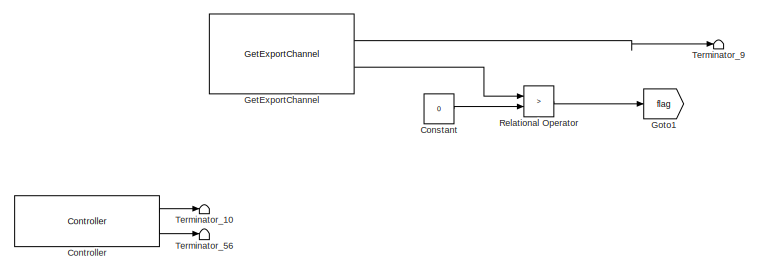
[diagram: root canvas - part 1/6, top left region]
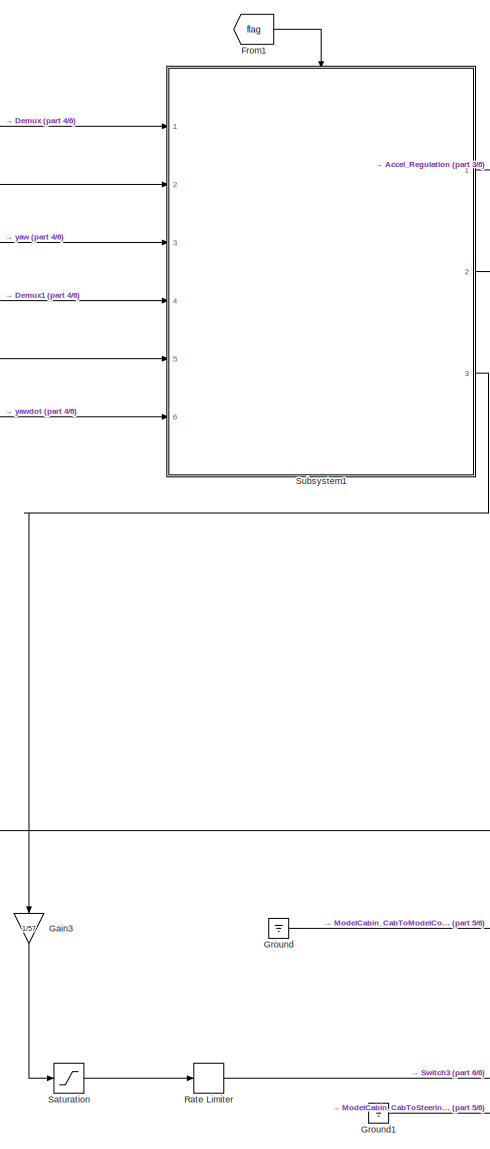
[diagram: root canvas - part 2/6, central region]
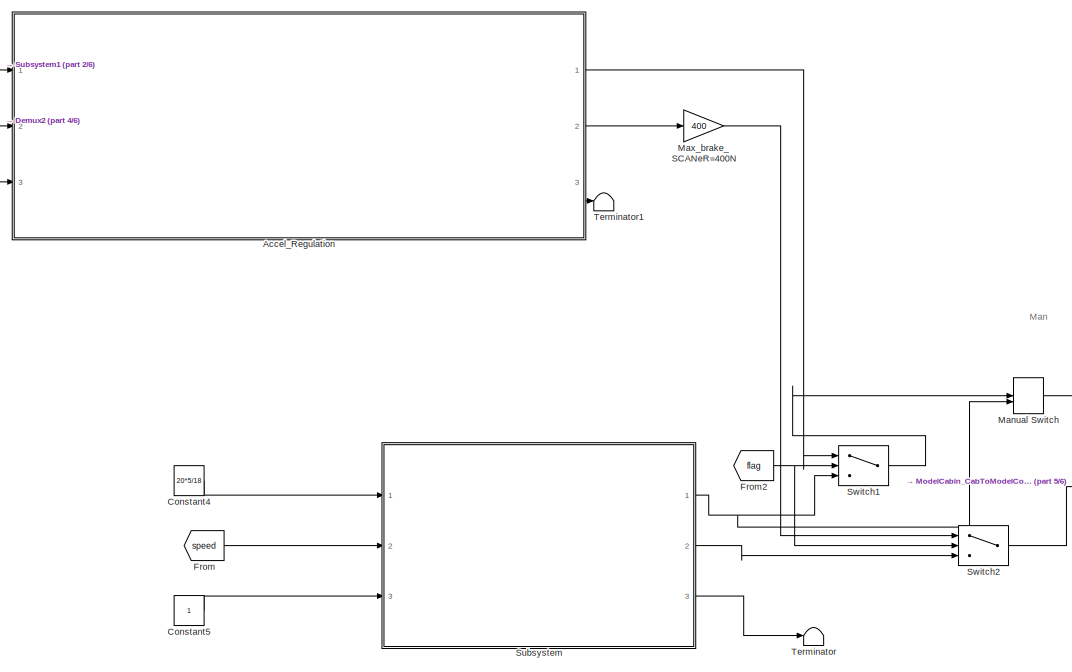
[diagram: root canvas - part 3/6, middle right region]
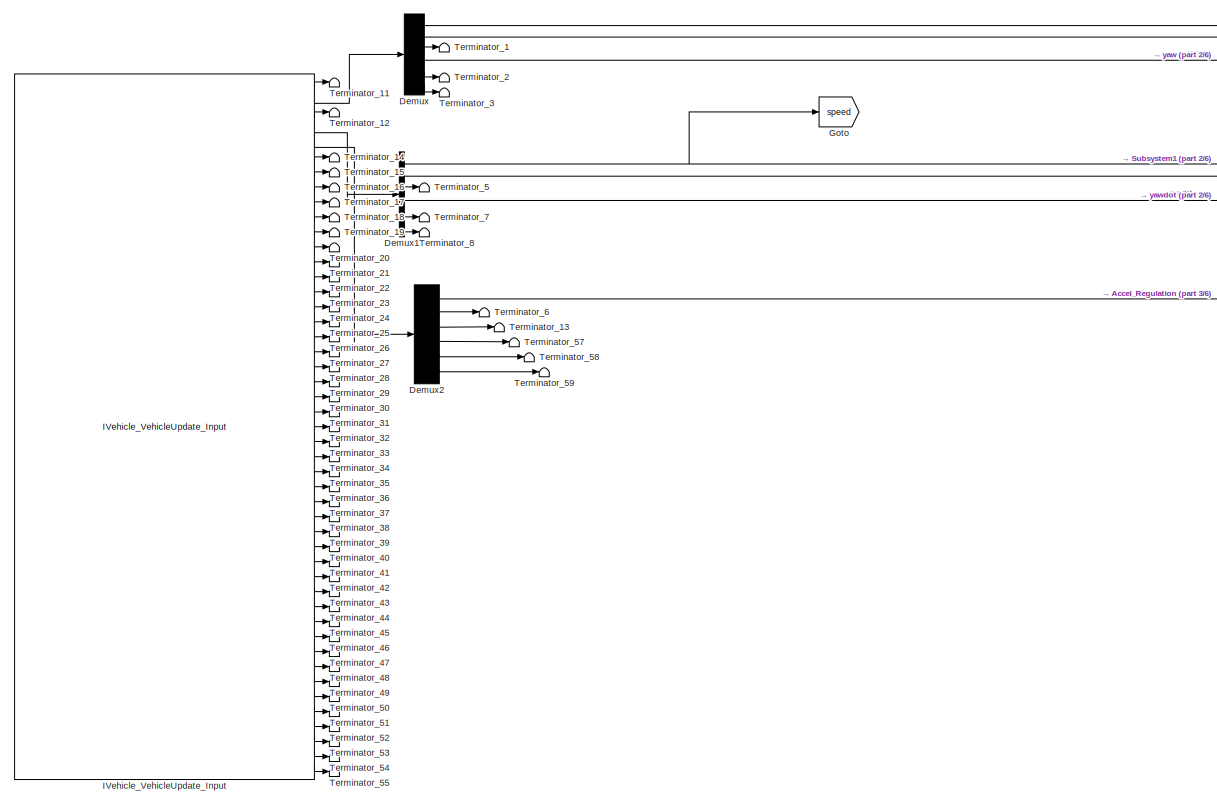
[diagram: root canvas - part 4/6, bottom left region]
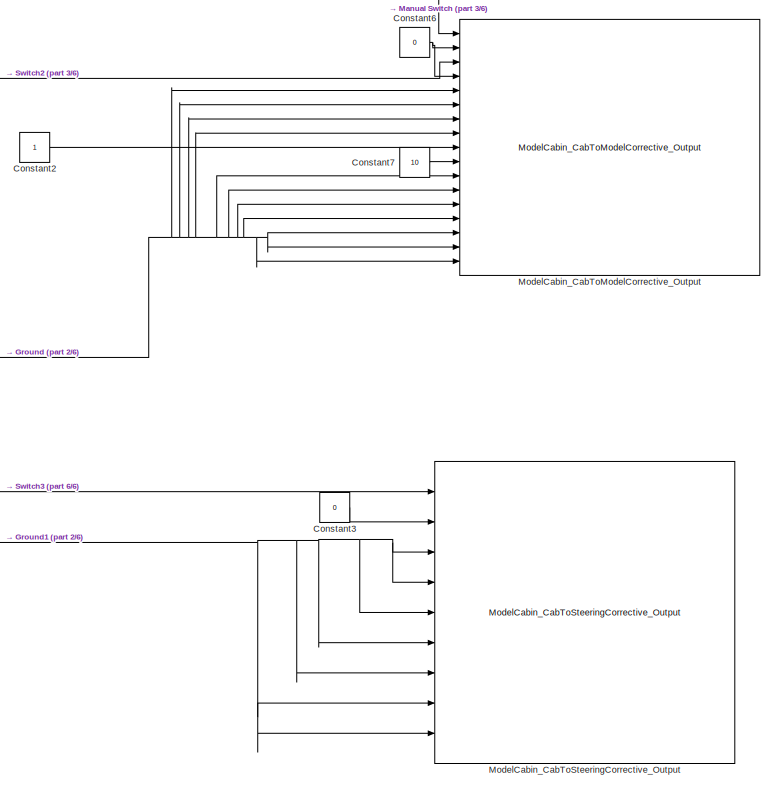
[diagram: root canvas - part 5/6, bottom right region]
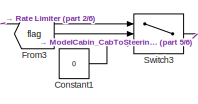
[diagram: root canvas - part 6/6, bottom right region]
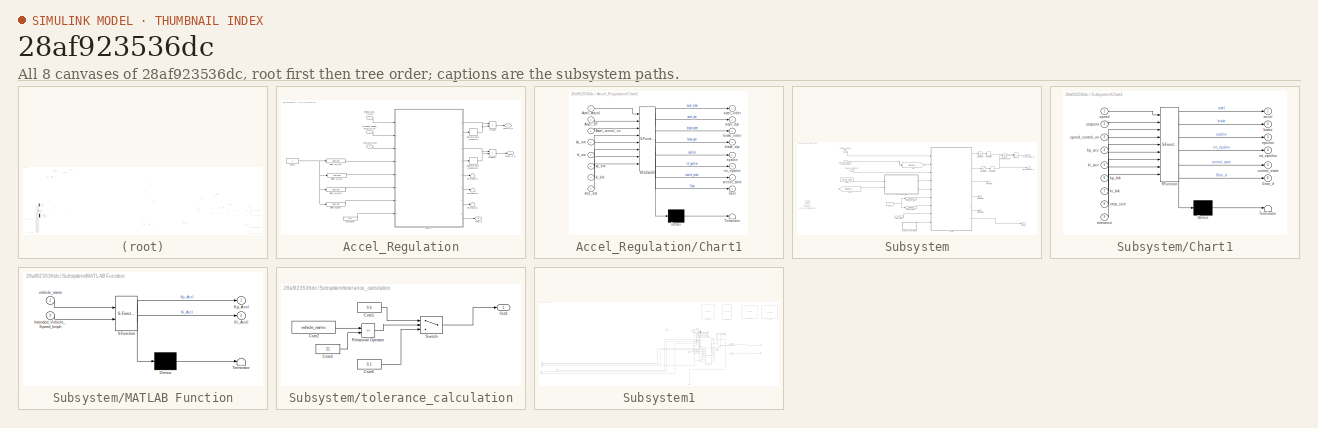
[diagram: thumbnail index - all 8 canvases of the model, root first then tree order]
MODEL slx_28af923536dc
KIND model
CONFIG AbsTol = auto
CONFIG EnableMultiTasking = off
CONFIG FixedStep = auto
CONFIG MaxStep = auto
CONFIG MinStep = auto
CONFIG RelTol = 1e-3
CONFIG SampleTimeConstraint = Unconstrained
CONFIG Solver = VariableStepAuto
CONFIG SolverName = VariableStepAuto
CONFIG StartTime = 0.0
CONFIG StopTime = inf
BLOCK [SubSystem] Accel_Regulation
  Ports = [3, 3]
  RequestExecContextInheritance = off
  Variant = off
BLOCK [Inport] Accel_Regulation/Accel_control_on
  IconDisplay = Port number
  Port = 3
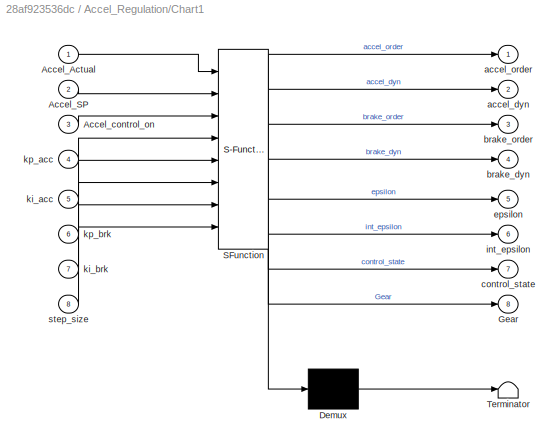
BLOCK [SubSystem] Accel_Regulation/Chart1
  ErrorFcn = Stateflow.Translate.translate
  PermitHierarchicalResolution = ExplicitOnly
  Ports = [8, 8]
  RequestExecContextInheritance = off
  SFBlockType = Chart
  SystemSampleTime = 0.01
  TreatAsAtomicUnit = on
  Variant = off
BLOCK [Demux] Accel_Regulation/Chart1/ Demux 
  Outputs = 1
  Ports = [1, 1]
BLOCK [S-Function] Accel_Regulation/Chart1/ SFunction 
  EnableBusSupport = on
  FunctionName = sf_sfun
  PortCounts = [8 9]
  Ports = [8, 9]
  SFcnIsStateOwnerBlock = off
  SFunctionDeploymentMode = off
  Tag = Stateflow S-Function roundabout_try1 2
BLOCK [Terminator] Accel_Regulation/Chart1/ Terminator 
BLOCK [Inport] Accel_Regulation/Chart1/Accel_Actual
  IconDisplay = Port number
BLOCK [Inport] Accel_Regulation/Chart1/Accel_SP
  IconDisplay = Port number
  Port = 2
BLOCK [Inport] Accel_Regulation/Chart1/Accel_control_on
  IconDisplay = Port number
  Port = 3
BLOCK [Outport] Accel_Regulation/Chart1/Gear
  IconDisplay = Port number
  Port = 8
BLOCK [Outport] Accel_Regulation/Chart1/accel_dyn
  IconDisplay = Port number
  Port = 2
BLOCK [Outport] Accel_Regulation/Chart1/accel_order
  IconDisplay = Port number
BLOCK [Outport] Accel_Regulation/Chart1/brake_dyn
  IconDisplay = Port number
  Port = 4
BLOCK [Outport] Accel_Regulation/Chart1/brake_order
  IconDisplay = Port number
  Port = 3
BLOCK [Outport] Accel_Regulation/Chart1/control_state
  IconDisplay = Port number
  Port = 7
BLOCK [Outport] Accel_Regulation/Chart1/epsilon
  IconDisplay = Port number
  Port = 5
BLOCK [Outport] Accel_Regulation/Chart1/int_epsilon
  IconDisplay = Port number
  Port = 6
BLOCK [Inport] Accel_Regulation/Chart1/ki_acc
  IconDisplay = Port number
  Port = 5
BLOCK [Inport] Accel_Regulation/Chart1/ki_brk
  IconDisplay = Port number
  Port = 7
BLOCK [Inport] Accel_Regulation/Chart1/kp_acc
  IconDisplay = Port number
  Port = 4
BLOCK [Inport] Accel_Regulation/Chart1/kp_brk
  IconDisplay = Port number
  Port = 6
BLOCK [Inport] Accel_Regulation/Chart1/step_size
  IconDisplay = Port number
  Port = 8
BLOCK [Constant] Accel_Regulation/Cste1
  SampleTime = 0.01
BLOCK [DiscreteIntegrator] Accel_Regulation/Discrete-Time Integrator
  ICPrevOutput = DiscIntNeverNeededParam
  ICPrevScaledInput = DiscIntNeverNeededParam
  LimitOutput = on
  LowerSaturationLimit = 0
  Ports = [1, 1]
  SampleTime = -1
  UpperSaturationLimit = 1
BLOCK [DiscreteIntegrator] Accel_Regulation/Discrete-Time Integrator1
  ICPrevOutput = DiscIntNeverNeededParam
  ICPrevScaledInput = DiscIntNeverNeededParam
  LimitOutput = on
  LowerSaturationLimit = 0
  Ports = [1, 1]
  SampleTime = -1
  UpperSaturationLimit = 1
BLOCK [Outport] Accel_Regulation/Gear_d
  IconDisplay = Port number
  Port = 3
BLOCK [Inport] Accel_Regulation/Intended_Vehicle_accel_[m//s2]
  IconDisplay = Port number
BLOCK [Product] Accel_Regulation/Product
  InputSameDT = off
  OutDataTypeStr = Inherit: Inherit via internal rule
  Ports = [2, 1]
  RndMeth = Floor
  SaturateOnIntegerOverflow = off
BLOCK [Product] Accel_Regulation/Product1
  InputSameDT = off
  OutDataTypeStr = Inherit: Inherit via internal rule
  Ports = [2, 1]
  RndMeth = Floor
  SaturateOnIntegerOverflow = off
BLOCK [Reference] Accel_Regulation/Slider_Ki_Acc1  REF=simulink/Math
Operations/Slider
Gain
  Ports = [1, 1]
  SourceBlock = simulink/Math\nOperations/Slider\nGain
  SourceType = Slider Gain
BLOCK [Reference] Accel_Regulation/Slider_Ki_Brk1  REF=simulink/Math
Operations/Slider
Gain
  Ports = [1, 1]
  SourceBlock = simulink/Math\nOperations/Slider\nGain
  SourceType = Slider Gain
BLOCK [Reference] Accel_Regulation/Slider_Kp_Acc1  REF=simulink/Math
Operations/Slider
Gain
  Ports = [1, 1]
  SourceBlock = simulink/Math\nOperations/Slider\nGain
  SourceType = Slider Gain
BLOCK [Reference] Accel_Regulation/Slider_Kp_Brk1  REF=simulink/Math
Operations/Slider
Gain
  Ports = [1, 1]
  SourceBlock = simulink/Math\nOperations/Slider\nGain
  SourceType = Slider Gain
BLOCK [Terminator] Accel_Regulation/Terminator4
BLOCK [Terminator] Accel_Regulation/Terminator5
BLOCK [Terminator] Accel_Regulation/Terminator6
BLOCK [Inport] Accel_Regulation/Vehicle_accel_[m//s2]
  IconDisplay = Port number
  Port = 2
BLOCK [Outport] Accel_Regulation/accel [0_1]
  IconDisplay = Port number
BLOCK [Outport] Accel_Regulation/brake [0_1]
  IconDisplay = Port number
  Port = 2
BLOCK [Constant] Accel_Regulation/step_size1
  SampleTime = 0.01
  Value = 0.01
BLOCK [Constant] Constant
  Value = 0
BLOCK [Constant] Constant1
  Value = 0
BLOCK [Constant] Constant2
BLOCK [Constant] Constant3
  Value = 0
BLOCK [Constant] Constant4
  Value = 20*5/18
BLOCK [Constant] Constant5
BLOCK [Constant] Constant6
  Value = 0
BLOCK [Constant] Constant7
  Value = 10
BLOCK [Reference] Controller  REF=SCANeR_API/Controller
  Ports = [0, 2]
  Priority = 1
  SourceBlock = SCANeR_API/Controller
BLOCK [Demux] Demux
  DisplayOption = bar
  Outputs = 6
  Ports = [1, 6]
BLOCK [Demux] Demux1
  DisplayOption = bar
  Outputs = 6
  Ports = [1, 6]
BLOCK [Demux] Demux2
  DisplayOption = bar
  Outputs = 6
  Ports = [1, 6]
BLOCK [From] From
  GotoTag = speed
BLOCK [From] From1
  GotoTag = flag
BLOCK [From] From2
  Commented = on
  GotoTag = flag
BLOCK [From] From3
  GotoTag = flag
BLOCK [Gain] Gain3
  Gain = 1/57
  OutDataTypeStr = Inherit: Inherit via internal rule
  ParamDataTypeStr = Inherit: Inherit via internal rule
  SaturateOnIntegerOverflow = off
BLOCK [Reference] GetExportChannel  REF=SCANeR_API/GetExportChannel
  Ports = [0, 2]
  Priority = 0
  SourceBlock = SCANeR_API/GetExportChannel
BLOCK [Goto] Goto
  GotoTag = speed
BLOCK [Goto] Goto1
  GotoTag = flag
BLOCK [Ground] Ground
BLOCK [Ground] Ground1
BLOCK [Reference] IVehicle_VehicleUpdate_Input  REF=SCANeR_API/Network inputs/IVehicle/IVehicle_VehicleUpdate_Input
  Ports = [0, 47]
  Priority = 2
  SourceBlock = SCANeR_API/Network inputs/IVehicle/IVehicle_VehicleUpdate_Input
  SourceType = IVehicle_VehicleUpdate_Input
BLOCK [ManualSwitch] Manual Switch
  CurrentSetting = 0
BLOCK [Gain] Max_brake_SCANeR=400N
  Gain = 400
  OutDataTypeStr = Inherit: Inherit via internal rule
  ParamDataTypeStr = Inherit: Inherit via internal rule
  SaturateOnIntegerOverflow = off
BLOCK [Reference] ModelCabin_CabToModelCorrective_Output  REF=SCANeR_API/SHM outputs/ModelCabin/ModelCabin_CabToModelCorrective_Output
  Ports = [17]
  Priority = 2
  SourceBlock = SCANeR_API/SHM outputs/ModelCabin/ModelCabin_CabToModelCorrective_Output
  SourceType = ModelCabin_CabToModelCorrective_Output
BLOCK [Reference] ModelCabin_CabToSteeringCorrective_Output  REF=SCANeR_API/SHM outputs/ModelCabin/ModelCabin_CabToSteeringCorrective_Output
  Ports = [9]
  Priority = 2
  SourceBlock = SCANeR_API/SHM outputs/ModelCabin/ModelCabin_CabToSteeringCorrective_Output
  SourceType = ModelCabin_CabToSteeringCorrective_Output
BLOCK [RateLimiter] Rate Limiter
  FallingSlewLimit = -10
  RisingSlewLimit = 10
  SampleTimeMode = inherited
BLOCK [RelationalOperator] Relational Operator
  InputSameDT = off
  Operator = >
  OutDataTypeStr = boolean
  Ports = [2, 1]
  RndMeth = Simplest
BLOCK [Saturate] Saturation
  InputPortMap = u0
  LowerLimit = -10
  Ports = [1, 1]
  UpperLimit = 10
BLOCK [SubSystem] Subsystem
  Ports = [3, 3]
  RequestExecContextInheritance = off
  Variant = off
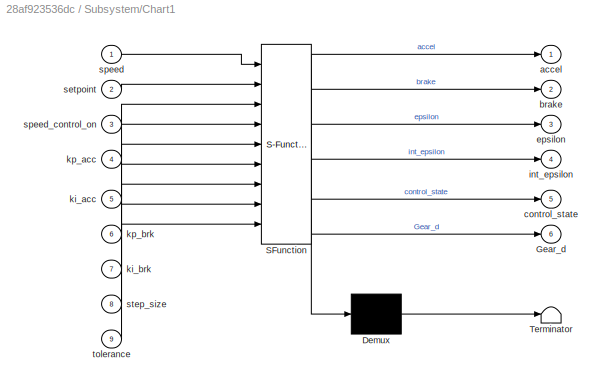
BLOCK [SubSystem] Subsystem/Chart1
  ErrorFcn = Stateflow.Translate.translate
  PermitHierarchicalResolution = ExplicitOnly
  Ports = [9, 6]
  RequestExecContextInheritance = off
  SFBlockType = Chart
  SystemSampleTime = 0.01
  TreatAsAtomicUnit = on
  Variant = off
BLOCK [Demux] Subsystem/Chart1/ Demux 
  Outputs = 1
  Ports = [1, 1]
BLOCK [S-Function] Subsystem/Chart1/ SFunction 
  EnableBusSupport = on
  FunctionName = sf_sfun
  PortCounts = [9 7]
  Ports = [9, 7]
  SFcnIsStateOwnerBlock = off
  SFunctionDeploymentMode = off
  Tag = Stateflow S-Function roundabout_try1 5
BLOCK [Terminator] Subsystem/Chart1/ Terminator 
BLOCK [Outport] Subsystem/Chart1/Gear_d
  IconDisplay = Port number
  Port = 6
BLOCK [Outport] Subsystem/Chart1/accel
  IconDisplay = Port number
BLOCK [Outport] Subsystem/Chart1/brake
  IconDisplay = Port number
  Port = 2
BLOCK [Outport] Subsystem/Chart1/control_state
  IconDisplay = Port number
  Port = 5
BLOCK [Outport] Subsystem/Chart1/epsilon
  IconDisplay = Port number
  Port = 3
BLOCK [Outport] Subsystem/Chart1/int_epsilon
  IconDisplay = Port number
  Port = 4
BLOCK [Inport] Subsystem/Chart1/ki_acc
  IconDisplay = Port number
  Port = 5
BLOCK [Inport] Subsystem/Chart1/ki_brk
  IconDisplay = Port number
  Port = 7
BLOCK [Inport] Subsystem/Chart1/kp_acc
  IconDisplay = Port number
  Port = 4
BLOCK [Inport] Subsystem/Chart1/kp_brk
  IconDisplay = Port number
  Port = 6
BLOCK [Inport] Subsystem/Chart1/setpoint
  IconDisplay = Port number
  Port = 2
BLOCK [Inport] Subsystem/Chart1/speed
  IconDisplay = Port number
BLOCK [Inport] Subsystem/Chart1/speed_control_on
  IconDisplay = Port number
  Port = 3
BLOCK [Inport] Subsystem/Chart1/step_size
  IconDisplay = Port number
  Port = 8
BLOCK [Inport] Subsystem/Chart1/tolerance
  IconDisplay = Port number
  Port = 9
BLOCK [Reference] Subsystem/Compare To Zero  REF=simulink/Logic and Bit
Operations/Compare
To Zero
  Ports = [1, 1]
  SourceBlock = simulink/Logic and Bit\nOperations/Compare\nTo Zero
  SourceType = Compare To Zero
BLOCK [Constant] Subsystem/Cste1
  SampleTime = 0.01
BLOCK [Constant] Subsystem/Cste3
  SampleTime = 0.01
  Value = vehicle_name
BLOCK [Outport] Subsystem/Driver_Brake [0_1]
  IconDisplay = Port number
  Port = 2
BLOCK [From] Subsystem/From
  GotoTag = Intended_Vehicle_Speed_kmph
BLOCK [Outport] Subsystem/Gear_d
  IconDisplay = Port number
  Port = 3
BLOCK [Goto] Subsystem/Goto
  GotoTag = Intended_Vehicle_Speed_kmph
BLOCK [Inport] Subsystem/Intended_Vehicle_Speed_[m//s]
  IconDisplay = Port number
BLOCK [SubSystem] Subsystem/MATLAB Function
  ErrorFcn = Stateflow.Translate.translate
  PermitHierarchicalResolution = ExplicitOnly
  Ports = [2, 2]
  RequestExecContextInheritance = off
  SFBlockType = MATLAB Function
  TreatAsAtomicUnit = on
  Variant = off
BLOCK [Demux] Subsystem/MATLAB Function/ Demux 
  Outputs = 1
  Ports = [1, 1]
BLOCK [S-Function] Subsystem/MATLAB Function/ SFunction 
  EnableBusSupport = on
  FunctionName = sf_sfun
  PortCounts = [2 3]
  Ports = [2, 3]
  SFcnIsStateOwnerBlock = off
  SFunctionDeploymentMode = off
  Tag = Stateflow S-Function roundabout_try1 6
BLOCK [Terminator] Subsystem/MATLAB Function/ Terminator 
BLOCK [Inport] Subsystem/MATLAB Function/Intended_Vehicle_Speed_kmph
  IconDisplay = Port number
  Port = 2
BLOCK [Outport] Subsystem/MATLAB Function/Ki_Accl
  IconDisplay = Port number
  Port = 2
BLOCK [Outport] Subsystem/MATLAB Function/Kp_Accl
  IconDisplay = Port number
BLOCK [Inport] Subsystem/MATLAB Function/vehicle_name
  IconDisplay = Port number
BLOCK [Product] Subsystem/Product
  InputSameDT = off
  OutDataTypeStr = Inherit: Inherit via internal rule
  Ports = [2, 1]
  RndMeth = Floor
  SaturateOnIntegerOverflow = off
BLOCK [RateLimiter] Subsystem/Rate Limiter
  RisingSlewLimit = 0.5
  SampleTimeMode = inherited
BLOCK [RateLimiter] Subsystem/Rate Limiter1
  RisingSlewLimit = 0.2
  SampleTimeMode = inherited
BLOCK [Saturate] Subsystem/Saturation2
  InputPortMap = u0
  LowerLimit = 0
  Ports = [1, 1]
  SampleTime = 0.01
  UpperLimit = 1
BLOCK [Saturate] Subsystem/Saturation4
  InputPortMap = u0
  LowerLimit = 0
  Ports = [1, 1]
  SampleTime = 0.01
  UpperLimit = 1
BLOCK [Reference] Subsystem/Slider_Ki_Brk1  REF=simulink/Math
Operations/Slider
Gain
  Ports = [1, 1]
  SourceBlock = simulink/Math\nOperations/Slider\nGain
  SourceType = Slider Gain
BLOCK [Reference] Subsystem/Slider_Kp_Brk1  REF=simulink/Math
Operations/Slider
Gain
  Ports = [1, 1]
  SourceBlock = simulink/Math\nOperations/Slider\nGain
  SourceType = Slider Gain
BLOCK [Inport] Subsystem/Speed_control_on
  IconDisplay = Port number
  Port = 3
BLOCK [Terminator] Subsystem/Terminator4
BLOCK [Terminator] Subsystem/Terminator5
BLOCK [Terminator] Subsystem/Terminator6
BLOCK [Inport] Subsystem/Vehicle_Speed_[m//s]
  IconDisplay = Port number
  Port = 2
BLOCK [Outport] Subsystem/accel_regul [0_1]
  IconDisplay = Port number
BLOCK [Constant] Subsystem/step_size1
  SampleTime = 0.01
  Value = 0.01
BLOCK [SubSystem] Subsystem/tolerance_calculation
  Ports = [0, 1]
  RequestExecContextInheritance = off
  Variant = off
BLOCK [Constant] Subsystem/tolerance_calculation/Cste2
  SampleTime = 0.01
  Value = vehicle_name
BLOCK [Constant] Subsystem/tolerance_calculation/Cste4
  SampleTime = 0.01
  Value = 21
BLOCK [Constant] Subsystem/tolerance_calculation/Cste5
  SampleTime = 0.01
  Value = 0.4
BLOCK [Constant] Subsystem/tolerance_calculation/Cste6
  SampleTime = 0.01
  Value = 0.1
BLOCK [Outport] Subsystem/tolerance_calculation/Out1
  IconDisplay = Port number
BLOCK [RelationalOperator] Subsystem/tolerance_calculation/Relational Operator
  InputSameDT = off
  Operator = ==
  OutDataTypeStr = boolean
  Ports = [2, 1]
  RndMeth = Simplest
BLOCK [Switch] Subsystem/tolerance_calculation/Switch
  Criteria = u2 > Threshold
  InputSameDT = off
  SaturateOnIntegerOverflow = off
  Threshold = 0.5
BLOCK [SubSystem] Subsystem1
  Ports = [6, 3, 1]
  RequestExecContextInheritance = off
  Variant = off
BLOCK [Clock] Subsystem1/Clock
BLOCK [Constant] Subsystem1/Constant1
BLOCK [EnablePort] Subsystem1/Enable
  Ports = []
BLOCK [Inport] Subsystem1/In15
  IconDisplay = Port number
BLOCK [Inport] Subsystem1/In16
  IconDisplay = Port number
  Port = 2
BLOCK [Inport] Subsystem1/In17
  IconDisplay = Port number
  Port = 3
BLOCK [Inport] Subsystem1/In18
  IconDisplay = Port number
  Port = 4
BLOCK [Inport] Subsystem1/In19
  IconDisplay = Port number
  Port = 5
BLOCK [Inport] Subsystem1/In20
  IconDisplay = Port number
  Port = 6
BLOCK [MATLABSystem] Subsystem1/MATLAB System
  Commented = on
  MaskDisplay = disp('casadi_block_MPCtry_1');\nport_label('input',1,'xd_in');\nport_label('input',2,'yd_in');\nport_label('input',3,'yawd_in');\nport_label('input',4,'yaw_in');\nport_label('input',5,'x_in');\nport_label('input',6,'y_in');\nport_label('input',7,'t');\nport_label('output',1,'delta_out');\nport_label('output',2,'acc_out');\nport_label('output',3,'break_out');\nport_label('output',4,'vref');\nport_label('output...<+11ch>
  MaskType = casadi_block_MPCtry_1
  Ports = [7, 5]
  SimulateUsing = Interpreted execution
  System = casadi_block_MPCtry_1
BLOCK [MATLABSystem] Subsystem1/MATLAB System1
  MaskDisplay = disp('casadi_block_MPCtry_3');\nport_label('input',1,'xd_in');\nport_label('input',2,'yd_in');\nport_label('input',3,'yawd_in');\nport_label('input',4,'yaw_in');\nport_label('input',5,'x_in');\nport_label('input',6,'y_in');\nport_label('input',7,'t');\nport_label('output',1,'delta_out');\nport_label('output',2,'acc_out');\nport_label('output',3,'break_out');\nport_label('output',4,'vref');\nport_label('output...<+11ch>
  MaskType = casadi_block_MPCtry_3
  Ports = [7, 5]
  SimulateUsing = Interpreted execution
  System = casadi_block_MPCtry_3
BLOCK [MATLABSystem] Subsystem1/MATLAB System2
  Commented = on
  MaskDisplay = disp('casadi_block_MPC_LSS');\nport_label('input',1,'xd_in');\nport_label('input',2,'yd_in');\nport_label('input',3,'yawd_in');\nport_label('input',4,'yaw_in');\nport_label('input',5,'x_in');\nport_label('input',6,'y_in');\nport_label('input',7,'t');\nport_label('output',1,'delta_out');\nport_label('output',2,'acc_out');\nport_label('output',3,'break_out');\nport_label('output',4,'vref');\nport_label('output'...<+10ch>
  MaskType = casadi_block_MPC_LSS
  Ports = [7, 5]
  SimulateUsing = Interpreted execution
  System = casadi_block_MPC_LSS
BLOCK [MATLABSystem] Subsystem1/MATLAB System3
  Commented = on
  MaskDisplay = disp('casadi_block_MPC_left_turn');\nport_label('input',1,'xd_in');\nport_label('input',2,'yd_in');\nport_label('input',3,'yawd_in');\nport_label('input',4,'yaw_in');\nport_label('input',5,'x_in');\nport_label('input',6,'y_in');\nport_label('input',7,'t');\nport_label('output',1,'delta_out');\nport_label('output',2,'acc_out');\nport_label('output',3,'break_out');\nport_label('output',4,'vref');\nport_label('o...<+16ch>
  MaskType = casadi_block_MPC_left_turn
  Ports = [7, 5]
  SimulateUsing = Interpreted execution
  System = casadi_block_MPC_left_turn
BLOCK [MATLABSystem] Subsystem1/MATLAB System4
  Commented = on
  MaskDisplay = disp('casadi_block_MPC_left_turn_2');\nport_label('input',1,'xd_in');\nport_label('input',2,'yd_in');\nport_label('input',3,'yawd_in');\nport_label('input',4,'yaw_in');\nport_label('input',5,'x_in');\nport_label('input',6,'y_in');\nport_label('input',7,'t');\nport_label('output',1,'delta_out');\nport_label('output',2,'acc_out');\nport_label('output',3,'break_out');\nport_label('output',4,'vref');\nport_label(...<+18ch>
  MaskType = casadi_block_MPC_left_turn_2
  Ports = [7, 5]
  SimulateUsing = Interpreted execution
  System = casadi_block_MPC_left_turn_2
BLOCK [Mux] Subsystem1/Mux1
  DisplayOption = bar
  Inputs = 2
  Ports = [2, 1]
BLOCK [Outport] Subsystem1/Out11
  IconDisplay = Port number
BLOCK [Outport] Subsystem1/Out12
  IconDisplay = Port number
  Port = 2
BLOCK [Outport] Subsystem1/Out13
  IconDisplay = Port number
  Port = 3
BLOCK [RateTransition] Subsystem1/Rate Transition2
  OutPortSampleTime = 0.02
BLOCK [Scope] Subsystem1/Scope
  NumInputPorts = 6
  Ports = [6]
  ScopeSpecificationString = C++SS(StrPVP('SaveName','ScopeData1'),StrPVP('LimitDataPoints','on'),StrPVP('DataFormat','Array'),StrPVP('Decimation','1'),StrPVP('BlockParamSampleInput','off'))
BLOCK [Scope] Subsystem1/Scope1
  NumInputPorts = 3
  Ports = [3]
  ScopeSpecificationString = Simulink.scopes.TimeScopeBlockCfg('CurrentConfiguration', extmgr.ConfigurationSet(extmgr.Configuration('Core','General UI',true),extmgr.Configuration('Core','Source UI',true),extmgr.Configuration('Sources','WiredSimulink',true,'DataLoggingVariableName','ScopeData2','DataLoggingLimitDataPoints',true,'DataLoggingSaveFormat','Array','DataLoggingDecimation','1','DataLoggingDecimateData',true),extmgr.C...<+3258ch>
BLOCK [Scope] Subsystem1/Scope2
  NumInputPorts = 1
  Ports = [1]
  ScopeSpecificationString = Simulink.scopes.TimeScopeBlockCfg('CurrentConfiguration', extmgr.ConfigurationSet(extmgr.Configuration('Core','General UI',true),extmgr.Configuration('Core','Source UI',true),extmgr.Configuration('Sources','WiredSimulink',true,'DataLoggingVariableName','ScopeData3','DataLoggingLimitDataPoints',true,'DataLoggingSaveFormat','Array','DataLoggingDecimation','1','DataLoggingDecimateData',true),extmgr.C...<+1547ch>
BLOCK [Scope] Subsystem1/Scope3
  NumInputPorts = 1
  Ports = [1]
  ScopeSpecificationString = C++SS(StrPVP('SaveName','ScopeData'),StrPVP('LimitDataPoints','on'),StrPVP('DataFormat','Array'),StrPVP('Decimation','1'),StrPVP('BlockParamSampleInput','off'),StrPVP('SaveName','ScopeData'),StrPVP('SaveName','ScopeData4'))
BLOCK [Sum] Subsystem1/Sum
  IconShape = round
  InputSameDT = off
  Inputs = |+-
  OutDataTypeStr = Inherit: Inherit via internal rule
  Ports = [2, 1]
  SaturateOnIntegerOverflow = off
BLOCK [Switch] Subsystem1/Switch
  InputSameDT = off
  SaturateOnIntegerOverflow = off
BLOCK [Switch] Switch1
  Criteria = u2 > Threshold
  InputSameDT = off
  SaturateOnIntegerOverflow = off
  Threshold = 5
BLOCK [Switch] Switch2
  Criteria = u2 > Threshold
  InputSameDT = off
  SaturateOnIntegerOverflow = off
BLOCK [Switch] Switch3
  Criteria = u2 > Threshold
  InputSameDT = off
  SaturateOnIntegerOverflow = off
BLOCK [Terminator] Terminator
BLOCK [Terminator] Terminator1
BLOCK [Terminator] Terminator_1
BLOCK [Terminator] Terminator_10
BLOCK [Terminator] Terminator_11
BLOCK [Terminator] Terminator_12
BLOCK [Terminator] Terminator_13
BLOCK [Terminator] Terminator_14
BLOCK [Terminator] Terminator_15
BLOCK [Terminator] Terminator_16
BLOCK [Terminator] Terminator_17
BLOCK [Terminator] Terminator_18
BLOCK [Terminator] Terminator_19
BLOCK [Terminator] Terminator_2
BLOCK [Terminator] Terminator_20
BLOCK [Terminator] Terminator_21
BLOCK [Terminator] Terminator_22
BLOCK [Terminator] Terminator_23
BLOCK [Terminator] Terminator_24
BLOCK [Terminator] Terminator_25
BLOCK [Terminator] Terminator_26
BLOCK [Terminator] Terminator_27
BLOCK [Terminator] Terminator_28
BLOCK [Terminator] Terminator_29
BLOCK [Terminator] Terminator_3
BLOCK [Terminator] Terminator_30
BLOCK [Terminator] Terminator_31
BLOCK [Terminator] Terminator_32
BLOCK [Terminator] Terminator_33
BLOCK [Terminator] Terminator_34
BLOCK [Terminator] Terminator_35
BLOCK [Terminator] Terminator_36
BLOCK [Terminator] Terminator_37
BLOCK [Terminator] Terminator_38
BLOCK [Terminator] Terminator_39
BLOCK [Terminator] Terminator_40
BLOCK [Terminator] Terminator_41
BLOCK [Terminator] Terminator_42
BLOCK [Terminator] Terminator_43
BLOCK [Terminator] Terminator_44
BLOCK [Terminator] Terminator_45
BLOCK [Terminator] Terminator_46
BLOCK [Terminator] Terminator_47
BLOCK [Terminator] Terminator_48
BLOCK [Terminator] Terminator_49
BLOCK [Terminator] Terminator_5
BLOCK [Terminator] Terminator_50
BLOCK [Terminator] Terminator_51
BLOCK [Terminator] Terminator_52
BLOCK [Terminator] Terminator_53
BLOCK [Terminator] Terminator_54
BLOCK [Terminator] Terminator_55
BLOCK [Terminator] Terminator_56
BLOCK [Terminator] Terminator_57
BLOCK [Terminator] Terminator_58
BLOCK [Terminator] Terminator_59
BLOCK [Terminator] Terminator_6
BLOCK [Terminator] Terminator_7
BLOCK [Terminator] Terminator_8
BLOCK [Terminator] Terminator_9
ANNOTATION (root): Man
ANNOTATION Subsystem: 0 = HHN 1 = BCB 2 = FFK 3 = KFKL1 4 = KFKL2 5 = KFKL1_VODM_CD04 6= KFKL1_VODM_CD05 7 = KFKL1_VODM_CD06 8 = FFKL1_VODM_CD06 9 = FFKL1_MMAC_CD06 10 = FFKL2_MMAC_CD06 11 = KFKL2_MMAC_CD06 12 = XDD_35T_TRS_L2H2
LINE Accel_Regulation/Accel_control_on:1 -> Accel_Regulation/Chart1:3
LINE Accel_Regulation/Chart1:1 -> Accel_Regulation/Product:1
LINE Accel_Regulation/Chart1:2 -> Accel_Regulation/Discrete-Time Integrator:1
LINE Accel_Regulation/Chart1:3 -> Accel_Regulation/Product1:1
LINE Accel_Regulation/Chart1:4 -> Accel_Regulation/Discrete-Time Integrator1:1
LINE Accel_Regulation/Chart1:5 -> Accel_Regulation/Terminator4:1
LINE Accel_Regulation/Chart1:6 -> Accel_Regulation/Terminator5:1
LINE Accel_Regulation/Chart1:7 -> Accel_Regulation/Terminator6:1
LINE Accel_Regulation/Chart1:8 -> Accel_Regulation/Gear_d:1
NET Accel_Regulation/Cste1:1 -> Accel_Regulation/Slider_Ki_Acc1:1, Accel_Regulation/Slider_Ki_Brk1:1, Accel_Regulation/Slider_Kp_Acc1:1, Accel_Regulation/Slider_Kp_Brk1:1
LINE Accel_Regulation/Discrete-Time Integrator1:1 -> Accel_Regulation/Product1:2
LINE Accel_Regulation/Discrete-Time Integrator:1 -> Accel_Regulation/Product:2
LINE Accel_Regulation/Intended_Vehicle_accel_[m//s2]:1 -> Accel_Regulation/Chart1:2
LINE Accel_Regulation/Product1:1 -> Accel_Regulation/brake [0_1]:1
LINE Accel_Regulation/Product:1 -> Accel_Regulation/accel [0_1]:1
LINE Accel_Regulation/Slider_Ki_Acc1:1 -> Accel_Regulation/Chart1:5
LINE Accel_Regulation/Slider_Ki_Brk1:1 -> Accel_Regulation/Chart1:7
LINE Accel_Regulation/Slider_Kp_Acc1:1 -> Accel_Regulation/Chart1:4
LINE Accel_Regulation/Slider_Kp_Brk1:1 -> Accel_Regulation/Chart1:6
LINE Accel_Regulation/Vehicle_accel_[m//s2]:1 -> Accel_Regulation/Chart1:1
LINE Accel_Regulation/step_size1:1 -> Accel_Regulation/Chart1:8
LINE Accel_Regulation:1 -> Switch1:1
LINE Accel_Regulation:2 -> Max_brake_SCANeR=400N:1
LINE Accel_Regulation:3 -> Terminator1:1
LINE Constant1:1 -> Switch3:3
LINE Constant2:1 -> ModelCabin_CabToModelCorrective_Output:9
LINE Constant3:1 -> ModelCabin_CabToSteeringCorrective_Output:2
LINE Constant4:1 -> Subsystem:1
LINE Constant5:1 -> Subsystem:3
NET Constant6:1 -> ModelCabin_CabToModelCorrective_Output:2, ModelCabin_CabToModelCorrective_Output:4
LINE Constant7:1 -> ModelCabin_CabToModelCorrective_Output:10
LINE Constant:1 -> Relational Operator:2
LINE Controller:1 -> Terminator_10:1
LINE Controller:2 -> Terminator_56:1
NET Demux1:1 -> Goto:1, Subsystem1:4
LINE Demux1:2 -> Subsystem1:5
LINE Demux1:3 -> Terminator_5:1
LINE Demux1:4 -> Subsystem1:6
LINE Demux1:5 -> Terminator_7:1
LINE Demux1:6 -> Terminator_8:1
LINE Demux2:1 -> Accel_Regulation:2
LINE Demux2:2 -> Terminator_6:1
LINE Demux2:3 -> Terminator_13:1
LINE Demux2:4 -> Terminator_57:1
LINE Demux2:5 -> Terminator_58:1
LINE Demux2:6 -> Terminator_59:1
LINE Demux:1 -> Subsystem1:1
LINE Demux:2 -> Subsystem1:2
LINE Demux:3 -> Terminator_1:1
LINE Demux:4 -> Subsystem1:3
LINE Demux:5 -> Terminator_2:1
LINE Demux:6 -> Terminator_3:1
LINE From1:1 -> Subsystem1:enable
NET From2:1 -> Switch1:2, Switch2:2
LINE From3:1 -> Switch3:2
LINE From:1 -> Subsystem:2
LINE Gain3:1 -> Saturation:1
LINE GetExportChannel:1 -> Terminator_9:1
LINE GetExportChannel:2 -> Relational Operator:1
NET Ground1:1 -> ModelCabin_CabToSteeringCorrective_Output:3, ModelCabin_CabToSteeringCorrective_Output:4, ModelCabin_CabToSteeringCorrective_Output:5, ModelCabin_CabToSteeringCorrective_Output:6, ModelCabin_CabToSteeringCorrective_Output:7, ModelCabin_CabToSteeringCorrective_Output:8, ModelCabin_CabToSteeringCorrective_Output:9
NET Ground:1 -> ModelCabin_CabToModelCorrective_Output:11, ModelCabin_CabToModelCorrective_Output:12, ModelCabin_CabToModelCorrective_Output:13, ModelCabin_CabToModelCorrective_Output:14, ModelCabin_CabToModelCorrective_Output:15, ModelCabin_CabToModelCorrective_Output:16, ModelCabin_CabToModelCorrective_Output:17, ModelCabin_CabToModelCorrective_Output:5, ModelCabin_CabToModelCorrective_Output:6, ModelCabin_CabToModelCorrective_Output:7, ModelCabin_CabToModelCorrective_Output:8
LINE IVehicle_VehicleUpdate_Input:1 -> Terminator_11:1
LINE IVehicle_VehicleUpdate_Input:10 -> Terminator_18:1
LINE IVehicle_VehicleUpdate_Input:11 -> Terminator_19:1
LINE IVehicle_VehicleUpdate_Input:12 -> Terminator_20:1
LINE IVehicle_VehicleUpdate_Input:13 -> Terminator_21:1
LINE IVehicle_VehicleUpdate_Input:14 -> Terminator_22:1
LINE IVehicle_VehicleUpdate_Input:15 -> Terminator_23:1
LINE IVehicle_VehicleUpdate_Input:16 -> Terminator_24:1
LINE IVehicle_VehicleUpdate_Input:17 -> Terminator_25:1
LINE IVehicle_VehicleUpdate_Input:18 -> Terminator_26:1
LINE IVehicle_VehicleUpdate_Input:19 -> Terminator_27:1
LINE IVehicle_VehicleUpdate_Input:2 -> Demux:1
LINE IVehicle_VehicleUpdate_Input:20 -> Terminator_28:1
LINE IVehicle_VehicleUpdate_Input:21 -> Terminator_29:1
LINE IVehicle_VehicleUpdate_Input:22 -> Terminator_30:1
LINE IVehicle_VehicleUpdate_Input:23 -> Terminator_31:1
LINE IVehicle_VehicleUpdate_Input:24 -> Terminator_32:1
LINE IVehicle_VehicleUpdate_Input:25 -> Terminator_33:1
LINE IVehicle_VehicleUpdate_Input:26 -> Terminator_34:1
LINE IVehicle_VehicleUpdate_Input:27 -> Terminator_35:1
LINE IVehicle_VehicleUpdate_Input:28 -> Terminator_36:1
LINE IVehicle_VehicleUpdate_Input:29 -> Terminator_37:1
LINE IVehicle_VehicleUpdate_Input:3 -> Terminator_12:1
LINE IVehicle_VehicleUpdate_Input:30 -> Terminator_38:1
LINE IVehicle_VehicleUpdate_Input:31 -> Terminator_39:1
LINE IVehicle_VehicleUpdate_Input:32 -> Terminator_40:1
LINE IVehicle_VehicleUpdate_Input:33 -> Terminator_41:1
LINE IVehicle_VehicleUpdate_Input:34 -> Terminator_42:1
LINE IVehicle_VehicleUpdate_Input:35 -> Terminator_43:1
LINE IVehicle_VehicleUpdate_Input:36 -> Terminator_44:1
LINE IVehicle_VehicleUpdate_Input:37 -> Terminator_45:1
LINE IVehicle_VehicleUpdate_Input:38 -> Terminator_46:1
LINE IVehicle_VehicleUpdate_Input:39 -> Terminator_47:1
LINE IVehicle_VehicleUpdate_Input:4 -> Demux1:1
LINE IVehicle_VehicleUpdate_Input:40 -> Terminator_48:1
LINE IVehicle_VehicleUpdate_Input:41 -> Terminator_49:1
LINE IVehicle_VehicleUpdate_Input:42 -> Terminator_50:1
LINE IVehicle_VehicleUpdate_Input:43 -> Terminator_51:1
LINE IVehicle_VehicleUpdate_Input:44 -> Terminator_52:1
LINE IVehicle_VehicleUpdate_Input:45 -> Terminator_53:1
LINE IVehicle_VehicleUpdate_Input:46 -> Terminator_54:1
LINE IVehicle_VehicleUpdate_Input:47 -> Terminator_55:1
LINE IVehicle_VehicleUpdate_Input:5 -> Demux2:1
LINE IVehicle_VehicleUpdate_Input:6 -> Terminator_14:1
LINE IVehicle_VehicleUpdate_Input:7 -> Terminator_15:1
LINE IVehicle_VehicleUpdate_Input:8 -> Terminator_16:1
LINE IVehicle_VehicleUpdate_Input:9 -> Terminator_17:1
LINE Manual Switch:1 -> ModelCabin_CabToModelCorrective_Output:1
LINE Max_brake_SCANeR=400N:1 -> Switch2:1
LINE Rate Limiter:1 -> Switch3:1
LINE Relational Operator:1 -> Goto1:1
LINE Saturation:1 -> Rate Limiter:1
LINE Subsystem/Chart1:1 -> Subsystem/Saturation2:1
LINE Subsystem/Chart1:2 -> Subsystem/Saturation4:1
LINE Subsystem/Chart1:3 -> Subsystem/Terminator4:1
LINE Subsystem/Chart1:4 -> Subsystem/Terminator5:1
LINE Subsystem/Chart1:5 -> Subsystem/Terminator6:1
LINE Subsystem/Chart1:6 -> Subsystem/Gear_d:1
LINE Subsystem/Compare To Zero:1 -> Subsystem/Product:2
NET Subsystem/Cste1:1 -> Subsystem/Slider_Ki_Brk1:1, Subsystem/Slider_Kp_Brk1:1
LINE Subsystem/Cste3:1 -> Subsystem/MATLAB Function:1
LINE Subsystem/From:1 -> Subsystem/MATLAB Function:2
NET Subsystem/Intended_Vehicle_Speed_[m//s]:1 -> Subsystem/Chart1:2, Subsystem/Goto:1
LINE Subsystem/MATLAB Function:1 -> Subsystem/Chart1:4
LINE Subsystem/MATLAB Function:2 -> Subsystem/Chart1:5
LINE Subsystem/Product:1 -> Subsystem/accel_regul [0_1]:1
NET Subsystem/Rate Limiter1:1 -> Subsystem/Compare To Zero:1, Subsystem/Driver_Brake [0_1]:1
LINE Subsystem/Rate Limiter:1 -> Subsystem/Product:1
LINE Subsystem/Saturation2:1 -> Subsystem/Rate Limiter:1
LINE Subsystem/Saturation4:1 -> Subsystem/Rate Limiter1:1
LINE Subsystem/Slider_Ki_Brk1:1 -> Subsystem/Chart1:7
LINE Subsystem/Slider_Kp_Brk1:1 -> Subsystem/Chart1:6
LINE Subsystem/Speed_control_on:1 -> Subsystem/Chart1:3
LINE Subsystem/Vehicle_Speed_[m//s]:1 -> Subsystem/Chart1:1
LINE Subsystem/step_size1:1 -> Subsystem/Chart1:8
LINE Subsystem/tolerance_calculation/Cste2:1 -> Subsystem/tolerance_calculation/Relational Operator:1
LINE Subsystem/tolerance_calculation/Cste4:1 -> Subsystem/tolerance_calculation/Relational Operator:2
LINE Subsystem/tolerance_calculation/Cste5:1 -> Subsystem/tolerance_calculation/Switch:1
LINE Subsystem/tolerance_calculation/Cste6:1 -> Subsystem/tolerance_calculation/Switch:3
LINE Subsystem/tolerance_calculation/Relational Operator:1 -> Subsystem/tolerance_calculation/Switch:2
LINE Subsystem/tolerance_calculation/Switch:1 -> Subsystem/tolerance_calculation/Out1:1
LINE Subsystem/tolerance_calculation:1 -> Subsystem/Chart1:9
LINE Subsystem1/Clock:1 -> Subsystem1/Rate Transition2:1
LINE Subsystem1/Constant1:1 -> Subsystem1/Out12:1
NET Subsystem1/In15:1 -> Subsystem1/MATLAB System1:5, Subsystem1/Scope:5
NET Subsystem1/In16:1 -> Subsystem1/MATLAB System1:6, Subsystem1/Scope:6
NET Subsystem1/In17:1 -> Subsystem1/MATLAB System1:4, Subsystem1/Scope:4
NET Subsystem1/In18:1 -> Subsystem1/MATLAB System1:1, Subsystem1/Mux1:2, Subsystem1/Sum:2
NET Subsystem1/In19:1 -> Subsystem1/MATLAB System1:2, Subsystem1/Scope:2
NET Subsystem1/In20:1 -> Subsystem1/MATLAB System1:3, Subsystem1/Scope:3
NET Subsystem1/MATLAB System1:1 -> Subsystem1/Out13:1, Subsystem1/Scope1:1
NET Subsystem1/MATLAB System1:2 -> Subsystem1/Scope1:2, Subsystem1/Switch:1, Subsystem1/Switch:2
NET Subsystem1/MATLAB System1:3 -> Subsystem1/Scope1:3, Subsystem1/Switch:3
NET Subsystem1/MATLAB System1:4 -> Subsystem1/Mux1:1, Subsystem1/Sum:1
LINE Subsystem1/MATLAB System1:5 -> Subsystem1/Scope2:1
LINE Subsystem1/Mux1:1 -> Subsystem1/Scope:1
LINE Subsystem1/Rate Transition2:1 -> Subsystem1/MATLAB System1:7
LINE Subsystem1/Sum:1 -> Subsystem1/Scope3:1
LINE Subsystem1/Switch:1 -> Subsystem1/Out11:1
LINE Subsystem1:1 -> Accel_Regulation:1
LINE Subsystem1:2 -> Accel_Regulation:3
LINE Subsystem1:3 -> Gain3:1
NET Subsystem:1 -> Manual Switch:2, Switch1:3
LINE Subsystem:2 -> Switch2:3
LINE Subsystem:3 -> Terminator:1
LINE Switch1:1 -> Manual Switch:1
LINE Switch2:1 -> ModelCabin_CabToModelCorrective_Output:3
LINE Switch3:1 -> ModelCabin_CabToSteeringCorrective_Output:1
note: NET lines group one-source signal fan-out (src -> all destinations, sorted); 1:1 wires keep LINE
CHART Accel_Regulation/Chart1 states=7 transitions=21
  STATE_LABEL 'Accel_Control/'
  STATE_LABEL 'Control_Off/\naccel_order= 0;\nbrake_order= 0;\naccel_dyn= 0;\nbrake_dyn= 0;\nint_epsilon = 0;\nGear=10;\n\n'
  STATE_LABEL 'Controller/\nlimit_accel = 1/kp_acc;\nlimit_brake = 1/kp_brk;'
  STATE_LABEL 'Acceleration_regulation/\n'
  STATE_LABEL 'accel/\ncontrol_state = 2;\naccel_order=1;\nbrake_order= 0;\naccel_dyn=  kp_acc*epsilon + ki_acc*int_epsilon;\nbrake_dyn= 0;\nGear=10;\n'
  STATE_LABEL '[Accel_SP >= 0]\n{epsilon =Accel_SP-Accel_Actual;}'
  STATE_LABEL '[abs(epsilon) < limit_accel & control_state == 2]\n{int_epsilon = int_epsilon + step_size*epsilon;}'
  STATE_LABEL '{int_epsilon = 0;}'
  STATE_LABEL 'Brake_regulation/\n'
  STATE_LABEL 'brake/\ncontrol_state = 1;\naccel_order=0;\nbrake_order=1;\naccel_dyn= 0;\nbrake_dyn=  kp_brk*epsilon + ki_brk*int_epsilon;\nGear=10;\n\n'
  STATE_LABEL '{epsilon =Accel_Actual-Accel_SP;}'
  STATE_LABEL '[abs(epsilon) < limit_brake & control_state == 1]\n{int_epsilon = int_epsilon + step_size*epsilon;}'
  STATE_LABEL '{int_epsilon = 0;}'
  STATE_LABEL '[Accel_SP >= 0]\n{epsilon =Accel_SP-Accel_Actual;}'
  STATE_LABEL '{epsilon =Accel_Actual-Accel_SP;}'
  STATE_LABEL '[Accel_SP >= 0]\n{epsilon =Accel_SP-Accel_Actual;}'
  STATE_LABEL '{epsilon =Accel_Actual-Accel_SP;}'
  STATE_LABEL '[Accel_control_on == 0]'
  STATE_LABEL '[Accel_control_on == 0]'
  STATE_LABEL '{control_state = 0;}'
  STATE_LABEL 'Control_Off/\naccel_order= 0;\nbrake_order= 0;\naccel_dyn= 0;\nbrake_dyn= 0;\nint_epsilon = 0;\nGear=10;\n\n'
  STATE_LABEL 'Controller/\nlimit_accel = 1/kp_acc;\nlimit_brake = 1/kp_brk;'
  STATE_LABEL 'Acceleration_regulation/\n'
  STATE_LABEL 'accel/\ncontrol_state = 2;\naccel_order=1;\nbrake_order= 0;\naccel_dyn=  kp_acc*epsilon + ki_acc*int_epsilon;\nbrake_dyn= 0;\nGear=10;\n'
  STATE_LABEL '[Accel_SP >= 0]\n{epsilon =Accel_SP-Accel_Actual;}'
  STATE_LABEL '[abs(epsilon) < limit_accel & control_state == 2]\n{int_epsilon = int_epsilon + step_size*epsilon;}'
  STATE_LABEL '{int_epsilon = 0;}'
  STATE_LABEL 'Brake_regulation/\n'
  STATE_LABEL 'brake/\ncontrol_state = 1;\naccel_order=0;\nbrake_order=1;\naccel_dyn= 0;\nbrake_dyn=  kp_brk*epsilon + ki_brk*int_epsilon;\nGear=10;\n\n'
  STATE_LABEL '{epsilon =Accel_Actual-Accel_SP;}'
  STATE_LABEL '[abs(epsilon) < limit_brake & control_state == 1]\n{int_epsilon = int_epsilon + step_size*epsilon;}'
  STATE_LABEL '{int_epsilon = 0;}'
  STATE_LABEL '[Accel_SP >= 0]\n{epsilon =Accel_SP-Accel_Actual;}'
  STATE_LABEL '{epsilon =Accel_Actual-Accel_SP;}'
  STATE_LABEL '[Accel_SP >= 0]\n{epsilon =Accel_SP-Accel_Actual;}'
  STATE_LABEL '{epsilon =Accel_Actual-Accel_SP;}'
  STATE_LABEL 'Acceleration_regulation/\n'
  STATE_LABEL 'accel/\ncontrol_state = 2;\naccel_order=1;\nbrake_order= 0;\naccel_dyn=  kp_acc*epsilon + ki_acc*int_epsilon;\nbrake_dyn= 0;\nGear=10;\n'
  STATE_LABEL '[Accel_SP >= 0]\n{epsilon =Accel_SP-Accel_Actual;}'
  STATE_LABEL '[abs(epsilon) < limit_accel & control_state == 2]\n{int_epsilon = int_epsilon + step_size*epsilon;}'
CHART Subsystem/Chart1 states=9 transitions=35
  STATE_LABEL 'Speed_Control/'
  STATE_LABEL 'Control_Off/\naccel = 0;\nbrake = 0;\nint_epsilon = 0;\nGear=3;\n'
  STATE_LABEL 'Controller/\nlimit_accel = 1/kp_acc;\nlimit_brake = 1/kp_brk;'
  STATE_LABEL 'normal_regulation/\n'
  STATE_LABEL 'normal_accel/\ncontrol_state = 2;\naccel = -kp_acc*epsilon - ki_acc*int_epsilon;\nbrake = 0;\nGear_d = Gear;\n'
  STATE_LABEL 'normal_brake/\ncontrol_state = 1;\nbrake = kp_brk*epsilon + ki_brk*int_epsilon;\naccel = 0;\nGear_d = Gear;\n'
  STATE_LABEL '{Gear =10;}'
  STATE_LABEL '[epsilon <= tolerance]'
  STATE_LABEL '[abs(epsilon) < limit_accel & control_state == 2]\n{int_epsilon = int_epsilon + step_size*epsilon;}'
  STATE_LABEL '{int_epsilon = 0;}'
  STATE_LABEL '[abs(epsilon) < limit_brake & control_state == 1]\n{int_epsilon = int_epsilon + step_size*epsilon;}'
  STATE_LABEL '{int_epsilon = 0;}'
  STATE_LABEL 'reverse_regulation1/\n'
  STATE_LABEL 'normal_accel/\ncontrol_state = 2;\naccel = -kp_acc*epsilon - ki_acc*int_epsilon;\nbrake = 0;\nGear_d = Gear;\n'
  STATE_LABEL 'normal_brake/\ncontrol_state = 1;\nbrake = kp_brk*epsilon + ki_brk*int_epsilon;\naccel = 0;\nGear_d = Gear;\n'
  STATE_LABEL '{Gear =2;}'
  STATE_LABEL '[epsilon <=-0.1]'
  STATE_LABEL '[abs(epsilon) < limit_accel & control_state == 2]\n{int_epsilon = int_epsilon + step_size*epsilon;}'
  STATE_LABEL '{int_epsilon = 0;}'
  STATE_LABEL '[abs(epsilon) < limit_brake & control_state == 1]\n{int_epsilon = int_epsilon + step_size*epsilon;}'
  STATE_LABEL '{int_epsilon = 0;}'
  STATE_LABEL '[setpoint< 0]\n{epsilon =- speed+setpoint;}'
  STATE_LABEL '{epsilon = speed-setpoint;}\n'
  STATE_LABEL '{Gear =10;}'
  STATE_LABEL '{Gear =2;}'
  STATE_LABEL '{Gear =10;}'
  STATE_LABEL '{Gear =2;}'
  STATE_LABEL '[speed_control_on == 0]'
  STATE_LABEL '[speed_control_on == 0]'
  STATE_LABEL '{control_state = 0;}'
  STATE_LABEL 'Control_Off/\naccel = 0;\nbrake = 0;\nint_epsilon = 0;\nGear=3;\n'
  STATE_LABEL 'Controller/\nlimit_accel = 1/kp_acc;\nlimit_brake = 1/kp_brk;'
  STATE_LABEL 'normal_regulation/\n'
  STATE_LABEL 'normal_accel/\ncontrol_state = 2;\naccel = -kp_acc*epsilon - ki_acc*int_epsilon;\nbrake = 0;\nGear_d = Gear;\n'
  STATE_LABEL 'normal_brake/\ncontrol_state = 1;\nbrake = kp_brk*epsilon + ki_brk*int_epsilon;\naccel = 0;\nGear_d = Gear;\n'
  STATE_LABEL '{Gear =10;}'
  STATE_LABEL '[epsilon <= tolerance]'
  STATE_LABEL '[abs(epsilon) < limit_accel & control_state == 2]\n{int_epsilon = int_epsilon + step_size*epsilon;}'
  STATE_LABEL '{int_epsilon = 0;}'
  STATE_LABEL '[abs(epsilon) < limit_brake & control_state == 1]\n{int_epsilon = int_epsilon + step_size*epsilon;}'
CHART Subsystem/MATLAB Function states=1 transitions=1
  STATE_LABEL 'eML_blk_kernel()'
  STATE_LABEL 'SCRIPT:\nfunction [Kp_Accl, Ki_Accl]= fcn(vehicle_name,Intended_Vehicle_Speed_kmph)\n% This function calculates the Kp_Accl and Ki_Accl\n% Following are the vehicle models to be used for simulation\n% Vehicle_name:\n% 0 = HHN\n% 1 = BCB\n% 2 = FFK\n% 3 = KFKL1\n% 4 = KFKL2\n% 5 = KFKL1_VODM_CD04\n% 6= KFKL1_VODM_CD05\n% 7 = KFKL1_VODM_CD06\n% 8 = FFKL1_VODM_CD06\n% 9 = FFKL1_MMAC_CD06\n% 10 = FFKL2_MMAC_CD06\n% 1...<+2099ch>'
